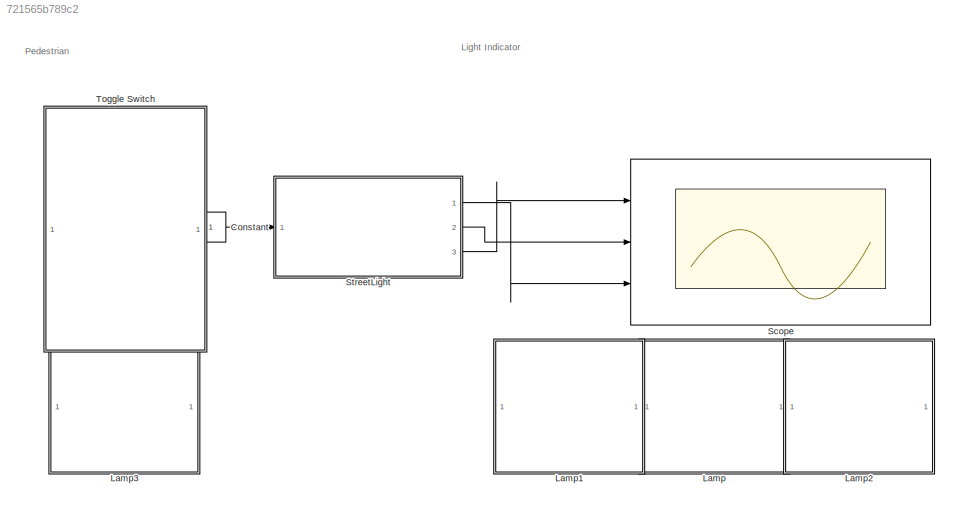
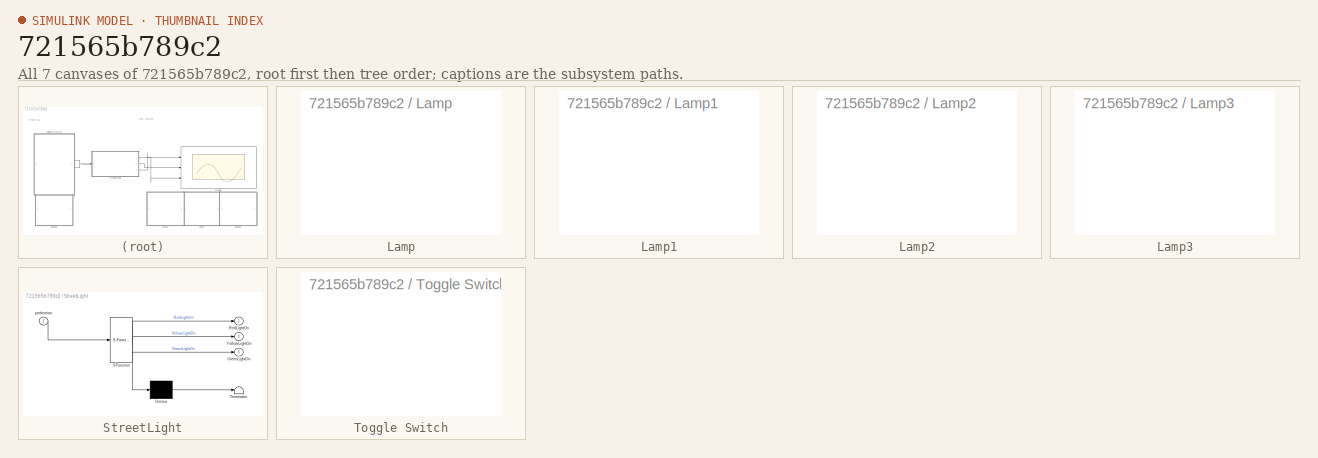
[diagram: thumbnail index - all 7 canvases of the model, root first then tree order]
MODEL slx_721565b789c2
KIND model
CONFIG AbsTol = auto
CONFIG EnableMultiTasking = off
CONFIG FixedStep = auto
CONFIG MaxStep = auto
CONFIG MinStep = auto
CONFIG RelTol = 1e-3
CONFIG SampleTimeConstraint = Unconstrained
CONFIG Solver = VariableStepAuto
CONFIG SolverName = VariableStepAuto
CONFIG StartTime = 0.0
CONFIG StopTime = inf
BLOCK [Constant] Constant
  OutDataTypeStr = boolean
BLOCK [SubSystem] Lamp
  DialogController = hmiCreateDDGDialog
  IsWebBlock = on
  MaskHideContents = on
  Ports = []
  RequestExecContextInheritance = off
  Variant = off
BLOCK [SubSystem] Lamp1
  DialogController = hmiCreateDDGDialog
  IsWebBlock = on
  MaskHideContents = on
  Ports = []
  RequestExecContextInheritance = off
  Variant = off
BLOCK [SubSystem] Lamp2
  DialogController = hmiCreateDDGDialog
  IsWebBlock = on
  MaskHideContents = on
  Ports = []
  RequestExecContextInheritance = off
  Variant = off
BLOCK [SubSystem] Lamp3
  DialogController = hmiCreateDDGDialog
  IsWebBlock = on
  MaskHideContents = on
  Ports = []
  RequestExecContextInheritance = off
  Variant = off
BLOCK [Scope] Scope
  NumInputPorts = 3
  Ports = [3]
  ScopeSpecificationString = Simulink.scopes.TimeScopeBlockCfg('CurrentConfiguration', extmgr.ConfigurationSet(extmgr.Configuration('Core','General UI',true),extmgr.Configuration('Core','Source UI',true),extmgr.Configuration('Sources','WiredSimulink',true),extmgr.Configuration('Visuals','Time Domain',true,'SerializedDisplays',{struct('MinYLimReal','-0.125','MaxYLimReal','1.125','YLabelReal','','MinYLimMag','0.00000','MaxYLimM...<+1633ch>
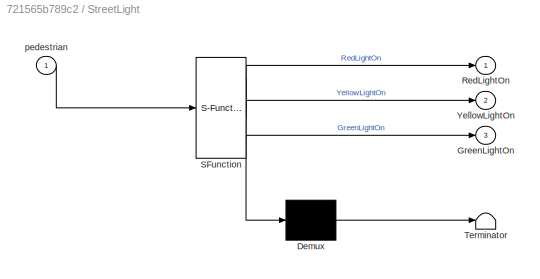
BLOCK [SubSystem] StreetLight
  ErrorFcn = Stateflow.Translate.translate
  PermitHierarchicalResolution = ExplicitOnly
  Ports = [1, 3]
  RequestExecContextInheritance = off
  SFBlockType = Chart
  TreatAsAtomicUnit = on
  Variant = off
BLOCK [Demux] StreetLight/ Demux 
  Outputs = 1
  Ports = [1, 1]
BLOCK [S-Function] StreetLight/ SFunction 
  EnableBusSupport = on
  FunctionName = sf_sfun
  PortCounts = [1 4]
  Ports = [1, 4]
  SFcnIsStateOwnerBlock = off
  SFunctionDeploymentMode = off
  Tag = Stateflow S-Function zantouts_TrafficLightTemplate 3
BLOCK [Terminator] StreetLight/ Terminator 
BLOCK [Outport] StreetLight/GreenLightOn
  IconDisplay = Port number
  Port = 3
BLOCK [Outport] StreetLight/RedLightOn
  IconDisplay = Port number
BLOCK [Outport] StreetLight/YellowLightOn
  IconDisplay = Port number
  Port = 2
BLOCK [Inport] StreetLight/pedestrian
  IconDisplay = Port number
BLOCK [SubSystem] Toggle Switch
  DialogController = hmiCreateDDGDialog
  IsWebBlock = on
  MaskHideContents = on
  Ports = []
  RequestExecContextInheritance = off
  Variant = off
ANNOTATION (root): Pedestrian
ANNOTATION (root): Light Indicator
LINE Constant:1 -> StreetLight:1
LINE StreetLight:1 -> Scope:3
LINE StreetLight:2 -> Scope:2
LINE StreetLight:3 -> Scope:1
CHART StreetLight states=3 transitions=8
  STATE_LABEL 'Red\nentry:RedLightOn=1;\nexit:RedLightOn=0;\n'
  STATE_LABEL 'Green\nentry:GreenLightOn=1;\nexit:GreenLightOn=0;'
  STATE_LABEL 'Yellow\nentry: YellowLightOn = 1;\nexit: YellowLightOn = 0;'
